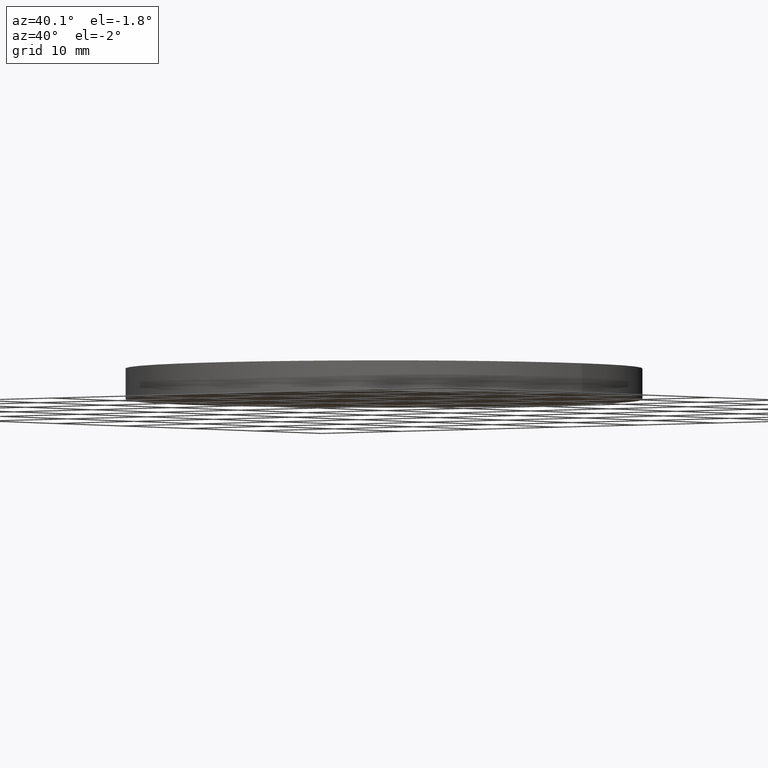
[diagram: clean part render]
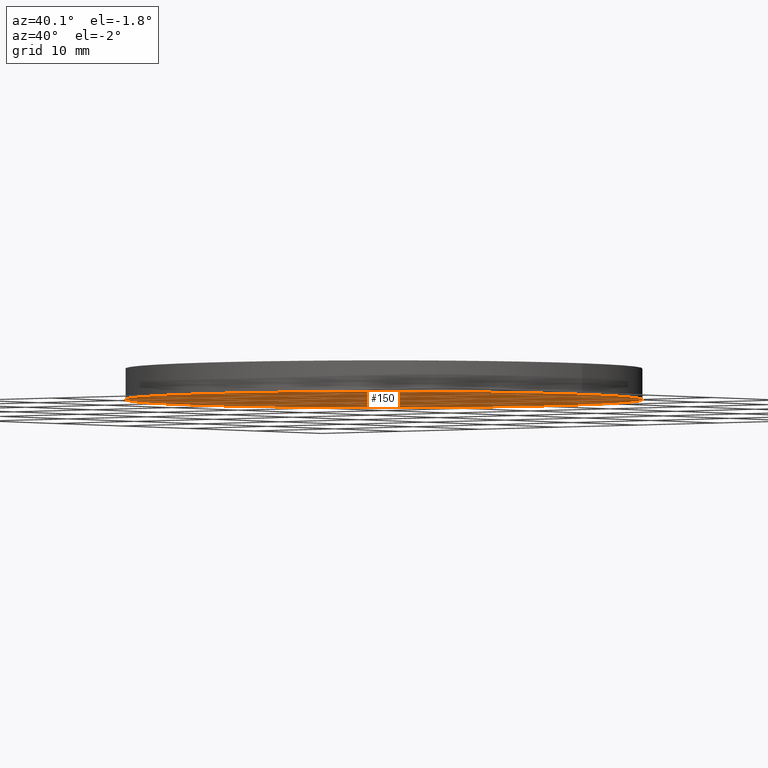
[diagram: same view with one face highlighted and labeled with its STEP entity id]
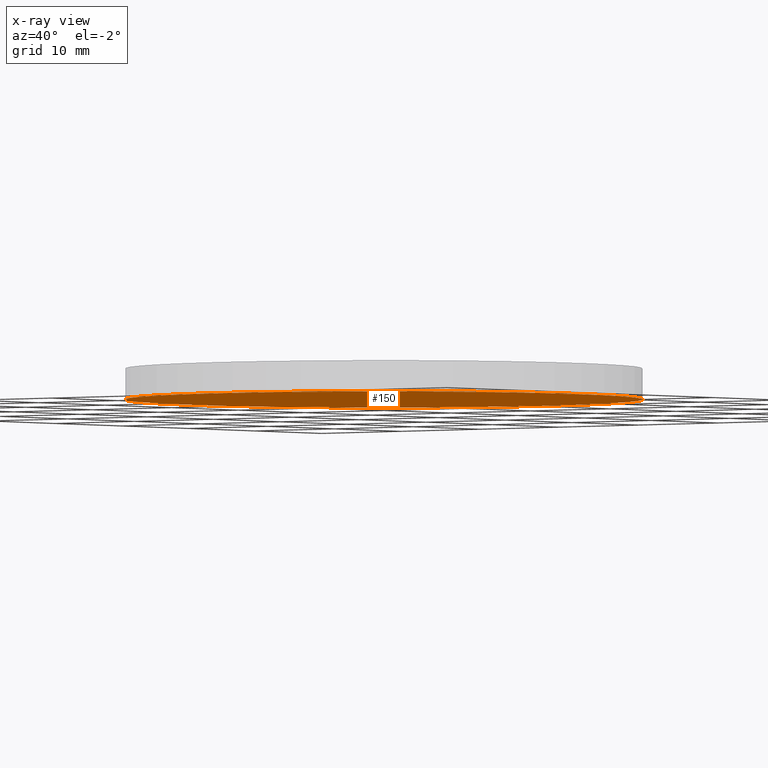
[diagram: x-ray of the same camera — body ghosted, the highlighted face saturated]
A machine part, auxiliary view. The second image highlights one B-rep face of the part: STEP entity #150.
The next image is the same camera in x-ray: the body ghosted, the highlighted face saturated — about 0% of this face is hidden behind the body in this view.
In plain terms, the highlighted planar face has unit normal (0, 0, 1).
Its self-contained STEP definition (entity closure, byte-faithful):
#16 = ORIENTED_EDGE ( 'NONE', *, *, #77, .F. ) ;
#17 = DIRECTION ( 'NONE',  ( 1.000000000000000000, 0.0000000000000000000, 0.0000000000000000000 ) ) ;
#26 = EDGE_LOOP ( 'NONE', ( #16, #211 ) ) ;
#37 = CARTESIAN_POINT ( 'NONE',  ( 25.00000000000000000, 3.061616997868383000E-015, 0.0000000000000000000 ) ) ;
#38 = PLANE ( 'NONE',  #56 ) ;
#56 = AXIS2_PLACEMENT_3D ( 'NONE', #238, #115, #131 ) ;
#65 = AXIS2_PLACEMENT_3D ( 'NONE', #171, #253, #173 ) ;
#68 = VERTEX_POINT ( 'NONE', #37 ) ;
#77 = EDGE_CURVE ( 'NONE', #157, #68, #213, .T. ) ;
#89 = EDGE_CURVE ( 'NONE', #68, #157, #153, .T. ) ;
#95 = CARTESIAN_POINT ( 'NONE',  ( -25.00000000000000000, 0.0000000000000000000, 0.0000000000000000000 ) ) ;
#115 = DIRECTION ( 'NONE',  ( 0.0000000000000000000, 0.0000000000000000000, 1.000000000000000000 ) ) ;
#131 = DIRECTION ( 'NONE',  ( 1.000000000000000000, 0.0000000000000000000, -0.0000000000000000000 ) ) ;
#147 = CARTESIAN_POINT ( 'NONE',  ( 0.0000000000000000000, 0.0000000000000000000, 0.0000000000000000000 ) ) ;
#150 = ADVANCED_FACE ( 'NONE', ( #208 ), #38, .F. ) ;
#153 = CIRCLE ( 'NONE', #65, 25.00000000000000000 ) ;
#157 = VERTEX_POINT ( 'NONE', #95 ) ;
#170 = AXIS2_PLACEMENT_3D ( 'NONE', #147, #177, #17 ) ;
#171 = CARTESIAN_POINT ( 'NONE',  ( 0.0000000000000000000, 0.0000000000000000000, 0.0000000000000000000 ) ) ;
#173 = DIRECTION ( 'NONE',  ( 1.000000000000000000, 0.0000000000000000000, 0.0000000000000000000 ) ) ;
#177 = DIRECTION ( 'NONE',  ( 0.0000000000000000000, 0.0000000000000000000, 1.000000000000000000 ) ) ;
#208 = FACE_OUTER_BOUND ( 'NONE', #26, .T. ) ;
#211 = ORIENTED_EDGE ( 'NONE', *, *, #89, .F. ) ;
#213 = CIRCLE ( 'NONE', #170, 25.00000000000000000 ) ;
#238 = CARTESIAN_POINT ( 'NONE',  ( 0.0000000000000000000, 0.0000000000000000000, 0.0000000000000000000 ) ) ;
#253 = DIRECTION ( 'NONE',  ( 0.0000000000000000000, 0.0000000000000000000, 1.000000000000000000 ) ) ;